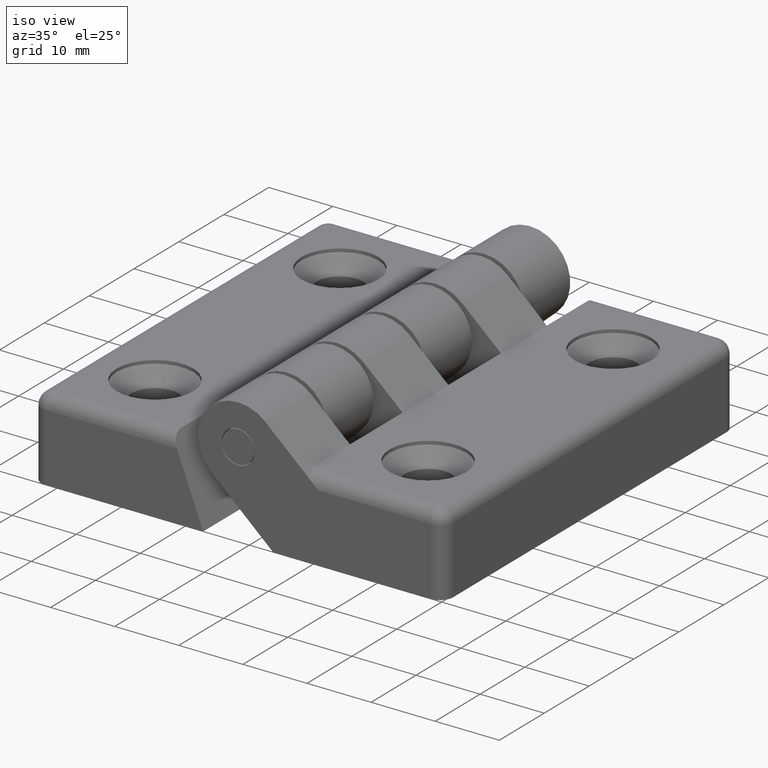
[diagram: clean part render]
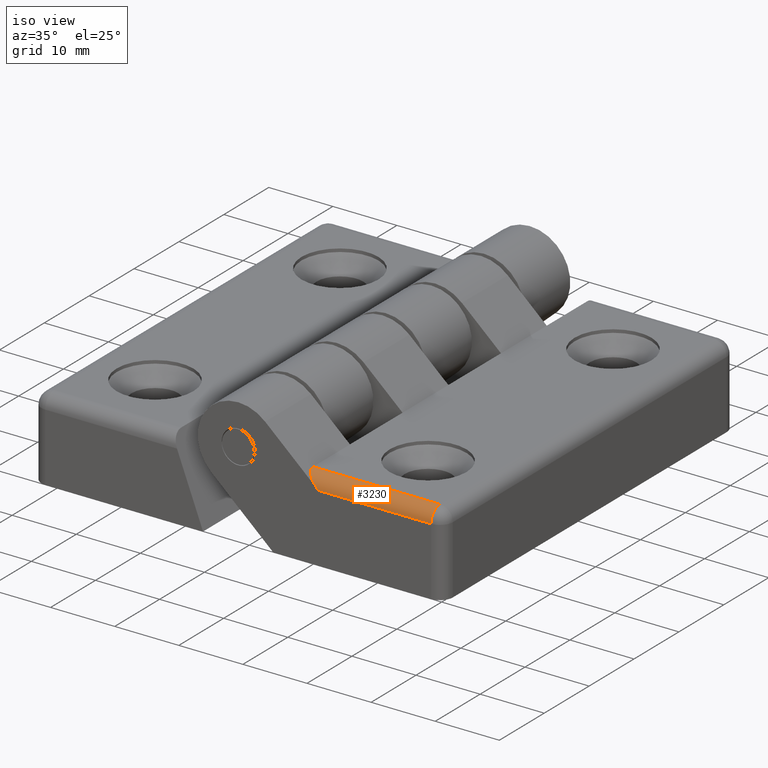
[diagram: same view with one face highlighted and labeled with its STEP entity id]
A machine part, iso view. The second image highlights one B-rep face of the part: STEP entity #3230.
In plain terms, the highlighted cylindrical surface (edge-blend (fillet) strip) has radius 2 mm, axis along (-1, 0, -0).
Its self-contained STEP definition (entity closure, byte-faithful):
#324=FACE_OUTER_BOUND('',#528,.T.);
#528=EDGE_LOOP('',(#2661,#2662,#2663,#2664));
#688=CIRCLE('',#3473,2.);
#911=LINE('',#5028,#1265);
#912=LINE('',#5031,#1266);
#1265=VECTOR('',#4096,19.7963077240007);
#1266=VECTOR('',#4099,17.5750826943423);
#1441=ELLIPSE('',#3474,2.98895309972922,2.);
#1598=VERTEX_POINT('',#5015);
#1601=VERTEX_POINT('',#5025);
#1602=VERTEX_POINT('',#5027);
#1603=VERTEX_POINT('',#5029);
#1980=EDGE_CURVE('',#1601,#1598,#688,.T.);
#1981=EDGE_CURVE('',#1598,#1602,#911,.T.);
#1982=EDGE_CURVE('',#1602,#1603,#1441,.F.);
#1983=EDGE_CURVE('',#1603,#1601,#912,.T.);
#2661=ORIENTED_EDGE('',*,*,#1980,.T.);
#2662=ORIENTED_EDGE('',*,*,#1981,.T.);
#2663=ORIENTED_EDGE('',*,*,#1982,.T.);
#2664=ORIENTED_EDGE('',*,*,#1983,.T.);
#3120=CYLINDRICAL_SURFACE('',#3472,2.);
#3230=ADVANCED_FACE('',(#324),#3120,.T.);
#3472=AXIS2_PLACEMENT_3D('',#5024,#4092,#4093);
#3473=AXIS2_PLACEMENT_3D('',#5026,#4094,#4095);
#3474=AXIS2_PLACEMENT_3D('',#5030,#4097,#4098);
#4092=DIRECTION('center_axis',(-1.,0.,-2.80149588304563E-16));
#4093=DIRECTION('ref_axis',(-1.98095673636776E-16,-0.707106781186548,0.707106781186547));
#4094=DIRECTION('center_axis',(-1.,0.,0.));
#4095=DIRECTION('ref_axis',(0.,-1.,0.));
#4096=DIRECTION('',(-1.,0.,-2.80149588304563E-16));
#4097=DIRECTION('center_axis',(-0.669130606358858,0.,-0.743144825477395));
#4098=DIRECTION('ref_axis',(-0.743144825477395,0.,0.669130606358858));
#4099=DIRECTION('',(1.,0.,2.80149588304563E-16));
#5015=CARTESIAN_POINT('',(30.1,-30.5,-0.799999999987104));
#5024=CARTESIAN_POINT('Origin',(11.6018461379999,-30.5,-2.79999999998711));
#5025=CARTESIAN_POINT('',(30.1,-32.5,-2.7999999999871));
#5026=CARTESIAN_POINT('Origin',(30.1,-30.5,-2.7999999999871));
#5027=CARTESIAN_POINT('',(10.3036922759993,-30.5,-0.79999999998711));
#5028=CARTESIAN_POINT('',(11.6018461379999,-30.5,-0.79999999998711));
#5029=CARTESIAN_POINT('',(12.5249173056577,-32.5,-2.79999999998711));
#5030=CARTESIAN_POINT('Origin',(12.5249173056577,-30.5,-2.79999999998711));
#5031=CARTESIAN_POINT('',(11.6018461379999,-32.5,-2.79999999998711));